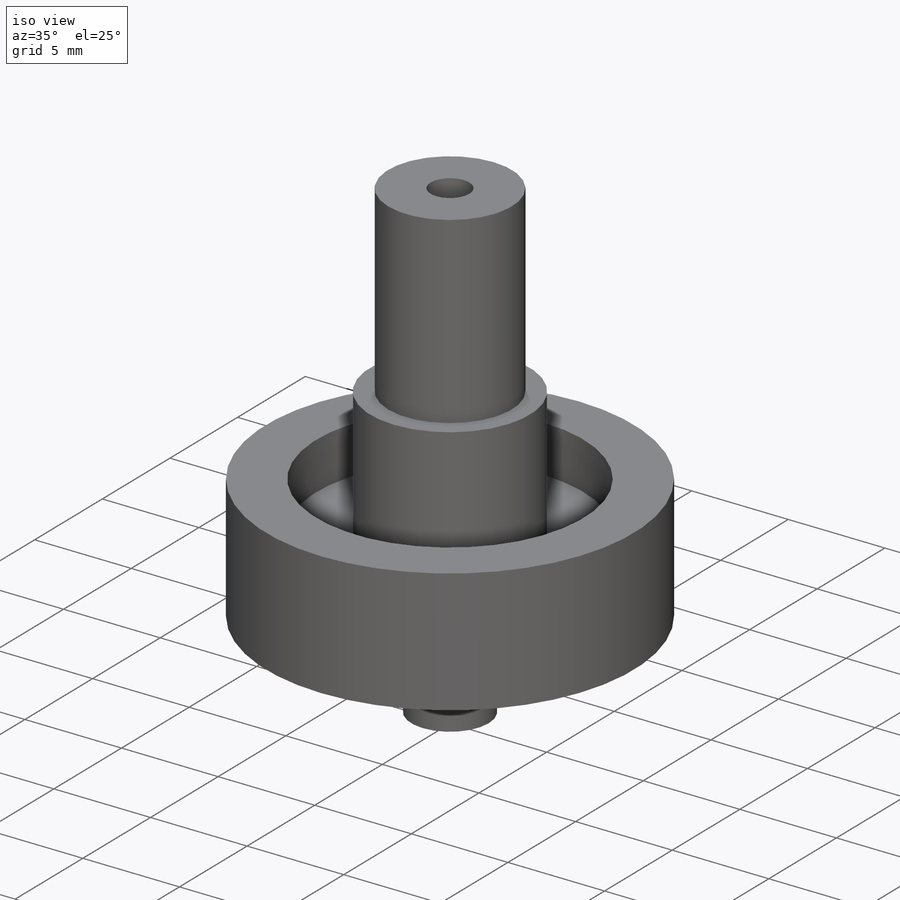
[diagram: iso view]
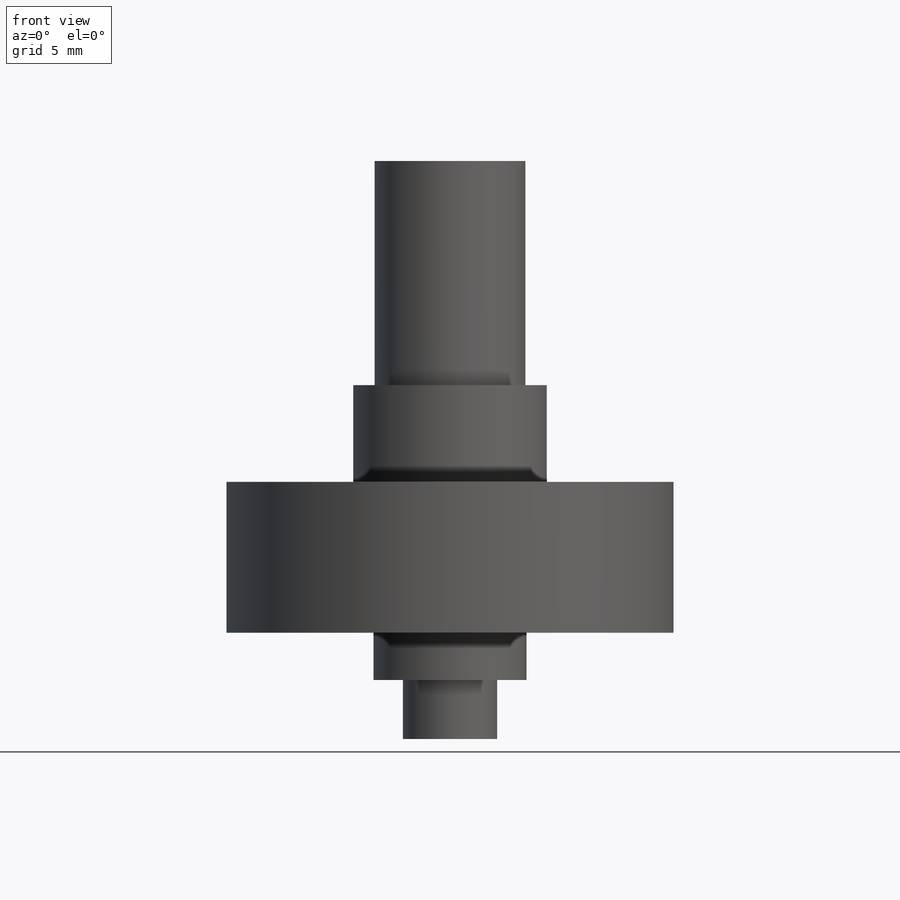
[diagram: front view]
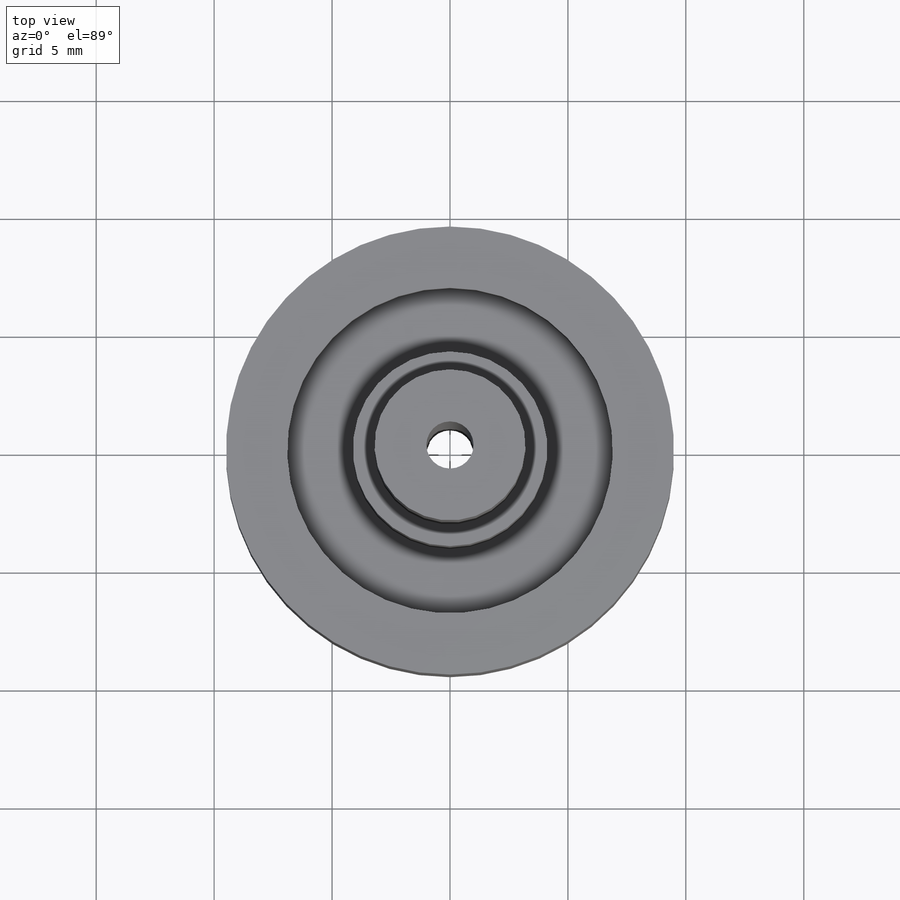
[diagram: top view]
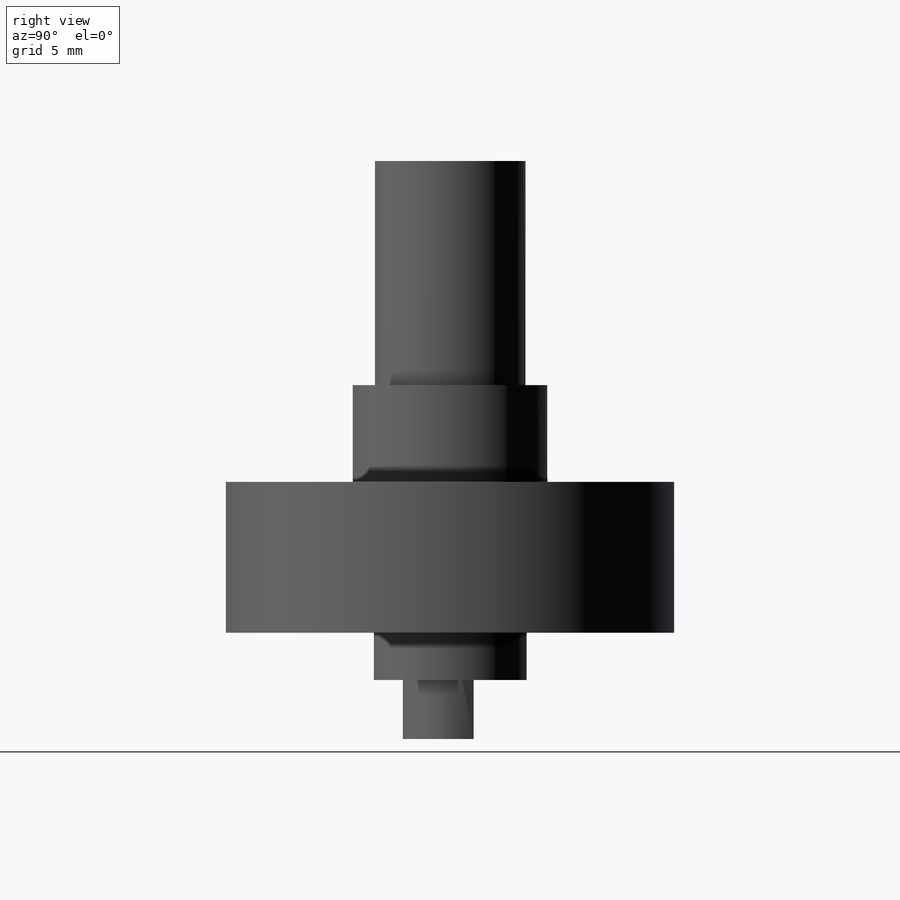
[diagram: right view]
SOLIDWORKS PART (.sldprt)
format: sldprt  version: not decoded by parser v0  size: 261,632 bytes
history: native  units: mm
features: sketch x5, cut_extrude x2, material x1, revolve x1, extrude x1, pattern_circular x1 (+16 scaffold rows collapsed)
feature tree (27):
  scaffold x16  (default folders/planes/origin — collapsed)
  material  "Material <not specified>"
  sketch  "Sketch1"  dims[D1=9.5mm D2=3.3mm D3=4.2mm D4=2.6mm D5=3.25mm D6=2.7mm D7=2.2mm D8=6.4mm D9=11.0mm D10=20.0mm D11=2.0mm]
  revolve  "Revolve1"  Angle=360deg
  sketch  "Sketch2"  dims[D1=2.0mm]
  cut_extrude  "Cut-Extrude1"  [1 undecoded]
  sketch  "Sketch3"  dims[c1.D1=~0.838444mm c2.D1=60.0deg c2.D2=1.0mm]
  extrude  "Boss-Extrude1"  Depth=3mm
  sketch  "Sketch5"  dims[D1=18.0mm]
  sketch  "Sketch4"  dims[c1.D2=17.0mm c1.D1=~8.024156mm c2.D1=~12.413793deg c3.D1=9.5mm c4.D1=~12.413793deg]
  cut_extrude  "Cut-Extrude2"  [1 undecoded]
  pattern_circular  "CirPattern1"  Count=29 Angle=360deg
decode coverage: 8 of 10 modeling features carry decoded parameters
note: ~ marks probable driven/reference dimensions
note: 2 parameter values undecoded
note: suppression state not decoded; provenance and decode notes live in map.json
